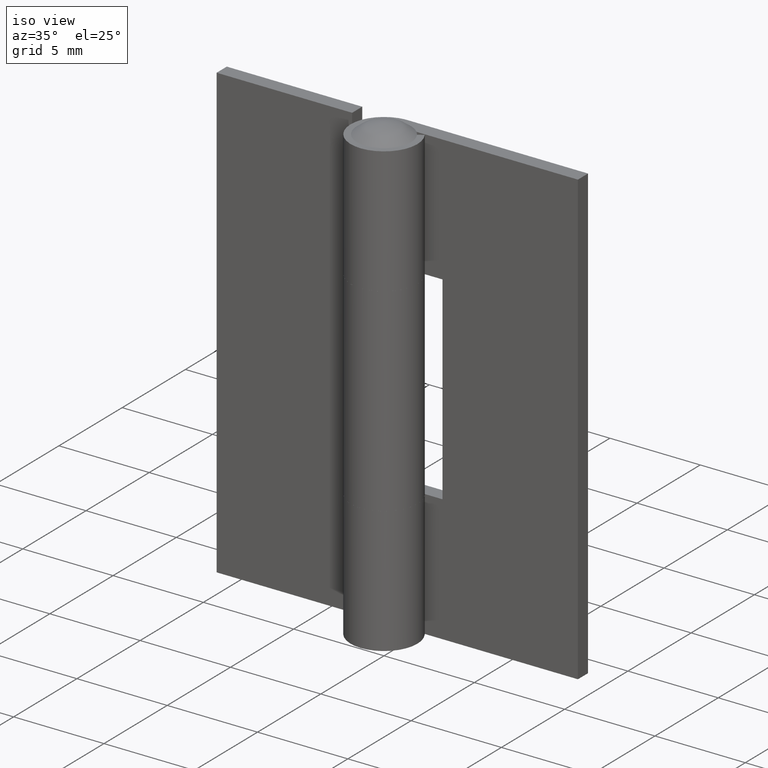
[diagram: clean part render]
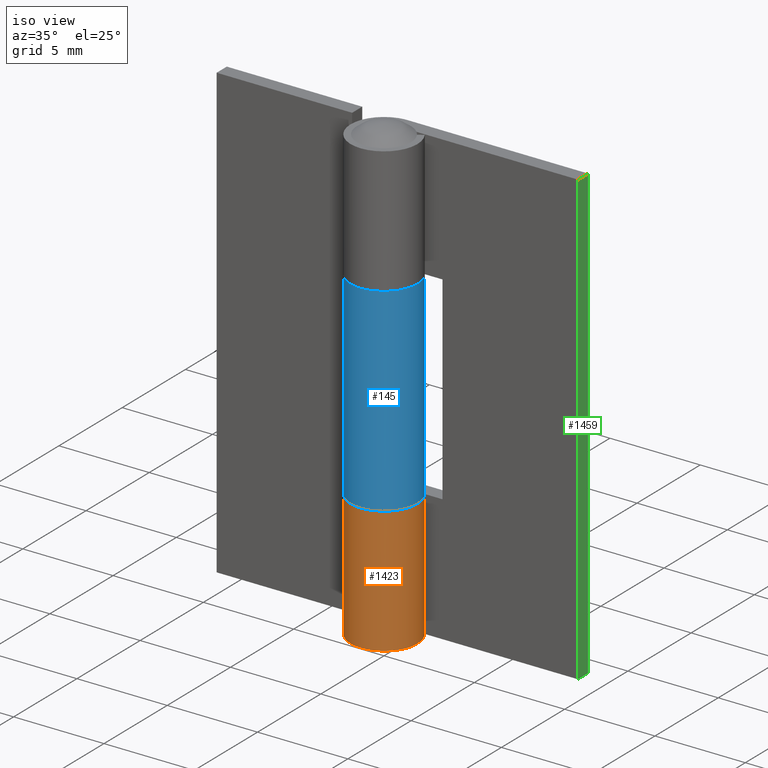
[diagram: same view with three faces highlighted in distinct colors, each labeled with its STEP entity id]
A machine part, iso view with three faces highlighted in distinct colors.
Their STEP definitions:

[orange] entity #1423 — the highlighted face is a freeform B-spline surface patch.
#958=CARTESIAN_POINT('',(0.0,1.850000000000000,7.000000000000110));
#959=VERTEX_POINT('',#958);
#965=CARTESIAN_POINT('',(1.556437599134330,1.000000999999980,7.000000000000120));
#966=VERTEX_POINT('',#965);
#967=CARTESIAN_POINT('',(0.0,1.850000000000000,7.000000000000110));
#968=CARTESIAN_POINT('',(-0.127268408848582,1.850019647286654,7.000000000000132));
#969=CARTESIAN_POINT('',(-0.349982262850688,1.826922222838104,7.000000000000108));
#970=CARTESIAN_POINT('',(-0.686990299737018,1.728643160177314,7.000000000000128));
#971=CARTESIAN_POINT('',(-0.984441462476270,1.579663123610138,7.000000000000105));
#972=CARTESIAN_POINT('',(-1.232614709757564,1.388895804804235,7.000000000000175));
#973=CARTESIAN_POINT('',(-1.462454877827154,1.149947962182073,7.000000000000062));
#974=CARTESIAN_POINT('',(-1.657183413183615,0.856154086143930,7.000000000000131));
#975=CARTESIAN_POINT('',(-1.784511345406885,0.521288922532856,7.000000000000119));
#976=CARTESIAN_POINT('',(-1.848175367005760,0.195809847718068,7.000000000000167));
#977=CARTESIAN_POINT('',(-1.857344973425890,-0.130160534143147,7.000000000000004));
#978=CARTESIAN_POINT('',(-1.799596075178139,-0.470588706500222,7.000000000000307));
#979=CARTESIAN_POINT('',(-1.686178182907616,-0.782657249568118,6.999999999999855));
#980=CARTESIAN_POINT('',(-1.515128374480828,-1.082219649309122,7.000000000000356));
#981=CARTESIAN_POINT('',(-1.267555111867376,-1.367420031875147,6.999999999999767));
#982=CARTESIAN_POINT('',(-0.990132875751529,-1.573591170846910,7.000000000000688));
#983=CARTESIAN_POINT('',(-0.700059779731627,-1.720531518453179,6.999999999999867));
#984=CARTESIAN_POINT('',(-0.432620813027356,-1.807415463789146,7.000000000000225));
#985=CARTESIAN_POINT('',(-0.154997901250533,-1.849081285794230,7.000000000000104));
#986=CARTESIAN_POINT('',(0.131883755673086,-1.853357429693368,7.000000000000117));
#987=CARTESIAN_POINT('',(0.397614709101427,-1.814522250267602,7.000000000000136));
#988=CARTESIAN_POINT('',(0.689909312206600,-1.724142383445965,7.000000000000065));
#989=CARTESIAN_POINT('',(0.920154328078304,-1.613056816283573,7.000000000000307));
#990=CARTESIAN_POINT('',(1.162276961298242,-1.447711483704098,7.000000000000044));
#991=CARTESIAN_POINT('',(1.364453192527809,-1.261769308445522,7.000000000000155));
#992=CARTESIAN_POINT('',(1.556707649877574,-1.015097005058090,7.000000000000108));
#993=CARTESIAN_POINT('',(1.727303556263660,-0.700650326120648,7.000000000000138));
#994=CARTESIAN_POINT('',(1.833821620476215,-0.337618058770215,7.000000000000083));
#995=CARTESIAN_POINT('',(1.858805785737472,0.025822444694856,7.000000000000168));
#996=CARTESIAN_POINT('',(1.825804441169200,0.349663247525962,7.000000000000104));
#997=CARTESIAN_POINT('',(1.734862934942954,0.675950258588345,6.999999999999750));
#998=CARTESIAN_POINT('',(1.625248268977287,0.892936776775437,7.000000000000932));
#999=CARTESIAN_POINT('',(1.556437599134330,1.000000999999980,7.000000000000120));
#1000=B_SPLINE_CURVE_WITH_KNOTS('',3,(#967,#968,#969,#970,#971,#972,#973,#974,#975,#976,#977,#978,#979,#980,#981,#982,#983,#984,#985,#986,#987,#988,#989,#990,#991,#992,#993,#994,#995,#996,#997,#998,#999),.UNSPECIFIED.,.F.,.U.,(4,1,1,1,1,1,1,1,1,1,1,1,1,1,1,1,1,1,1,1,1,1,1,1,1,1,1,1,1,1,4),(0.000000114575426,0.381802993802720,0.668168825409154,1.049988793245555,1.374536294766958,1.603628911715331,2.042714905346599,2.424537322749890,2.672690548535703,3.035419288678390,3.398152539963334,3.703605572299271,4.028151496728881,4.429055075905426,4.829968298970424,5.059033198297724,5.402679579567867,5.669944953283073,5.899037543651374,6.261766290576734,6.471763234315688,6.815397381076055,7.025406832492978,7.349924435297402,7.636285266158033,7.960839371755872,8.419017634739870,8.762654555039168,9.049020190715091,9.392653742420817,9.774461188009791),.UNSPECIFIED.);
#1001=EDGE_CURVE('',#959,#966,#1000,.T.);
#1176=CARTESIAN_POINT('',(1.556437599134330,1.000000999999980,0.0));
#1177=VERTEX_POINT('',#1176);
#1183=CARTESIAN_POINT('',(0.0,1.850000000000000,0.0));
#1184=VERTEX_POINT('',#1183);
#1185=CARTESIAN_POINT('',(1.556437599134330,1.000000999999980,0.0));
#1186=CARTESIAN_POINT('',(1.614919466232052,0.908995198988930,0.0));
#1187=CARTESIAN_POINT('',(1.709911712965063,0.727992889996504,0.0));
#1188=CARTESIAN_POINT('',(1.797788191864511,0.461261278961984,0.0));
#1189=CARTESIAN_POINT('',(1.847721578901901,0.185204178445372,0.0));
#1190=CARTESIAN_POINT('',(1.857879992178077,-0.159615410815052,0.0));
#1191=CARTESIAN_POINT('',(1.788540836779485,-0.525256484304277,0.0));
#1192=CARTESIAN_POINT('',(1.629784431127474,-0.901834313529941,0.0));
#1193=CARTESIAN_POINT('',(1.398175395356866,-1.240318237398118,0.0));
#1194=CARTESIAN_POINT('',(1.095049372931370,-1.507758290445123,0.0));
#1195=CARTESIAN_POINT('',(0.750949698833143,-1.703202570827433,0.0));
#1196=CARTESIAN_POINT('',(0.447557048390358,-1.805668789285905,0.0));
#1197=CARTESIAN_POINT('',(0.081512142601785,-1.859153323581745,0.0));
#1198=CARTESIAN_POINT('',(-0.270657373229639,-1.844843462542183,0.0));
#1199=CARTESIAN_POINT('',(-0.635484237623524,-1.748792448661818,0.0));
#1200=CARTESIAN_POINT('',(-0.975988352897429,-1.587217599968951,0.0));
#1201=CARTESIAN_POINT('',(-1.272005667258736,-1.362442159112480,0.0));
#1202=CARTESIAN_POINT('',(-1.492714431956814,-1.105484600241428,0.0));
#1203=CARTESIAN_POINT('',(-1.643893018464556,-0.861633349860477,0.0));
#1204=CARTESIAN_POINT('',(-1.767626619310086,-0.581357535892943,0.0));
#1205=CARTESIAN_POINT('',(-1.837639626117233,-0.282198120249321,0.0));
#1206=CARTESIAN_POINT('',(-1.857783115005402,0.055124784937026,0.0));
#1207=CARTESIAN_POINT('',(-1.827481382839163,0.341403134699213,0.0));
#1208=CARTESIAN_POINT('',(-1.744120924162519,0.635973956606939,0.0));
#1209=CARTESIAN_POINT('',(-1.619161948804697,0.915697524674720,0.0));
#1210=CARTESIAN_POINT('',(-1.445566345521452,1.169000721382992,0.0));
#1211=CARTESIAN_POINT('',(-1.209996777650326,1.411434996884379,0.0));
#1212=CARTESIAN_POINT('',(-0.930751190918129,1.614825688068647,0.0));
#1213=CARTESIAN_POINT('',(-0.515394801940501,1.799297457748852,0.0));
#1214=CARTESIAN_POINT('',(-0.190918806826347,1.850098657169000,0.0));
#1215=CARTESIAN_POINT('',(0.0,1.850000000000000,0.0));
#1216=B_SPLINE_CURVE_WITH_KNOTS('',3,(#1185,#1186,#1187,#1188,#1189,#1190,#1191,#1192,#1193,#1194,#1195,#1196,#1197,#1198,#1199,#1200,#1201,#1202,#1203,#1204,#1205,#1206,#1207,#1208,#1209,#1210,#1211,#1212,#1213,#1214,#1215),.UNSPECIFIED.,.F.,.U.,(4,1,1,1,1,1,1,1,1,1,1,1,1,1,1,1,1,1,1,1,1,1,1,1,1,1,1,1,4),(0.000000114528136,0.324529598206205,0.610895642268463,0.839988644991774,1.164535107637649,1.641806637505939,1.947265952378444,2.386352854833610,2.863600829372197,3.149965491480494,3.569969266373968,3.818151860456730,4.257241750845778,4.619964549261098,4.944493938499309,5.383581192645487,5.727218060915442,5.956310669443045,6.242674464045303,6.643580717549677,6.872671453449273,7.254488313540656,7.502648336934986,7.789020645619994,8.170833199597809,8.419017634733311,8.800833840093958,9.201739424129574,9.774461188009880),.UNSPECIFIED.);
#1217=EDGE_CURVE('',#1177,#1184,#1216,.T.);
#1382=CARTESIAN_POINT('',(1.556437599134330,1.000000999999980,7.000000000000120));
#1383=CARTESIAN_POINT('',(1.556437599134330,1.000000999999980,0.0));
#1384=QUASI_UNIFORM_CURVE('',1,(#1382,#1383),.UNSPECIFIED.,.F.,.U.);
#1385=EDGE_CURVE('',#966,#1177,#1384,.T.);
#1391=CARTESIAN_POINT('',(0.016144090671990,1.849929557668716,7.175000000000124));
#1392=CARTESIAN_POINT('',(0.016144090671990,1.849929557668716,-0.179375000000003));
#1393=CARTESIAN_POINT('',(-2.268328659883252,1.869865849334401,7.175000000000124));
#1394=CARTESIAN_POINT('',(-2.268328659883252,1.869865849334401,-0.179375000000003));
#1395=CARTESIAN_POINT('',(-1.812860703548534,-0.368830678671816,7.175000000000124));
#1396=CARTESIAN_POINT('',(-1.812860703548534,-0.368830678671816,-0.179375000000003));
#1397=CARTESIAN_POINT('',(-1.357392747213816,-2.607527206678032,7.175000000000124));
#1398=CARTESIAN_POINT('',(-1.357392747213816,-2.607527206678032,-0.179375000000003));
#1399=CARTESIAN_POINT('',(0.737685777511706,-1.696561137612479,7.175000000000124));
#1400=CARTESIAN_POINT('',(0.737685777511706,-1.696561137612479,-0.179375000000003));
#1401=CARTESIAN_POINT('',(2.832764302237227,-0.785595068546925,7.175000000000124));
#1402=CARTESIAN_POINT('',(2.832764302237227,-0.785595068546925,-0.179375000000003));
#1403=CARTESIAN_POINT('',(1.506113708959191,1.074300468065238,7.175000000000124));
#1404=CARTESIAN_POINT('',(1.506113708959191,1.074300468065238,-0.179375000000003));
#1412=(BOUNDED_SURFACE()B_SPLINE_SURFACE(1,2,((#1391,#1393,#1395,#1397,#1399,#1401,#1403),(#1392,#1394,#1396,#1398,#1400,#1402,#1404)),.UNSPECIFIED.,.F.,.F.,.U.)B_SPLINE_SURFACE_WITH_KNOTS((2,2),(3,2,2,3),(0.0,7.354375000000127),(0.0,3.529618941966384,7.059237883932768,10.588856825899150),.UNSPECIFIED.)GEOMETRIC_REPRESENTATION_ITEM()RATIONAL_B_SPLINE_SURFACE(((1.0,0.629320391049838,1.0,0.629320391049838,1.0,0.629320391049838,1.0),(1.0,0.629320391049838,1.0,0.629320391049838,1.0,0.629320391049838,1.0)))REPRESENTATION_ITEM('')SURFACE());
#1413=ORIENTED_EDGE('',*,*,#1001,.F.);
#1414=CARTESIAN_POINT('',(0.0,1.850000000000000,7.000000000000110));
#1415=CARTESIAN_POINT('',(0.0,1.850000000000000,0.0));
#1416=QUASI_UNIFORM_CURVE('',1,(#1414,#1415),.UNSPECIFIED.,.F.,.U.);
#1417=EDGE_CURVE('',#959,#1184,#1416,.T.);
#1418=ORIENTED_EDGE('',*,*,#1417,.T.);
#1419=ORIENTED_EDGE('',*,*,#1217,.F.);
#1420=ORIENTED_EDGE('',*,*,#1385,.F.);
#1421=EDGE_LOOP('',(#1413,#1418,#1419,#1420));
#1422=FACE_OUTER_BOUND('',#1421,.T.);
#1423=ADVANCED_FACE('',(#1422),#1412,.T.);

[blue] entity #145 — the highlighted face is a freeform B-spline surface patch.
#19=CARTESIAN_POINT('',(-1.556437599134330,1.000000999999980,6.999999999999901));
#20=VERTEX_POINT('',#19);
#26=CARTESIAN_POINT('',(-1.556437599134330,1.000000999999980,18.0));
#27=VERTEX_POINT('',#26);
#28=CARTESIAN_POINT('',(-1.556437599134330,1.000000999999980,18.0));
#29=CARTESIAN_POINT('',(-1.556437599134330,1.000000999999980,6.999999999999901));
#30=QUASI_UNIFORM_CURVE('',1,(#28,#29),.UNSPECIFIED.,.F.,.U.);
#31=EDGE_CURVE('',#27,#20,#30,.T.);
#41=CARTESIAN_POINT('',(-1.524633448950729,1.047851538310940,18.275000000000009));
#42=CARTESIAN_POINT('',(-1.524633448950729,1.047851538310940,6.718124999999867));
#43=CARTESIAN_POINT('',(-2.841963376294857,-0.868875399715183,18.275000000000006));
#44=CARTESIAN_POINT('',(-2.841963376294857,-0.868875399715183,6.718124999999867));
#45=CARTESIAN_POINT('',(-0.678027269439949,-1.721272500766745,18.275000000000009));
#46=CARTESIAN_POINT('',(-0.678027269439949,-1.721272500766745,6.718124999999867));
#47=CARTESIAN_POINT('',(1.485908837414959,-2.573669601818308,18.275000000000006));
#48=CARTESIAN_POINT('',(1.485908837414959,-2.573669601818308,6.718124999999867));
#49=CARTESIAN_POINT('',(1.829679347219546,-0.273447410589778,18.275000000000009));
#50=CARTESIAN_POINT('',(1.829679347219546,-0.273447410589778,6.718124999999867));
#51=CARTESIAN_POINT('',(2.173449857024133,2.026774780638751,18.275000000000006));
#52=CARTESIAN_POINT('',(2.173449857024133,2.026774780638751,6.718124999999867));
#53=CARTESIAN_POINT('',(-0.145149327096515,1.844297067406286,18.275000000000009));
#54=CARTESIAN_POINT('',(-0.145149327096515,1.844297067406286,6.718124999999867));
#62=(BOUNDED_SURFACE()B_SPLINE_SURFACE(1,2,((#41,#43,#45,#47,#49,#51,#53),(#42,#44,#46,#48,#50,#52,#54)),.UNSPECIFIED.,.F.,.F.,.U.)B_SPLINE_SURFACE_WITH_KNOTS((2,2),(3,2,2,3),(0.0,11.556875000000140),(0.0,3.569336282050022,7.138672564100044,10.708008846150070),.UNSPECIFIED.)GEOMETRIC_REPRESENTATION_ITEM()RATIONAL_B_SPLINE_SURFACE(((1.0,0.622514636637620,1.0,0.622514636637620,1.0,0.622514636637620,1.0),(1.0,0.622514636637620,1.0,0.622514636637620,1.0,0.622514636637620,1.0)))REPRESENTATION_ITEM('')SURFACE());
#63=ORIENTED_EDGE('',*,*,#31,.T.);
#64=CARTESIAN_POINT('',(0.0,1.850000000000000,6.999999999999870));
#65=VERTEX_POINT('',#64);
#66=CARTESIAN_POINT('',(-1.556437599134330,1.000000999999980,6.999999999999901));
#67=CARTESIAN_POINT('',(-1.625249621266764,0.892938819522273,6.999999999999907));
#68=CARTESIAN_POINT('',(-1.720427784096017,0.704497551381904,6.999999999999902));
#69=CARTESIAN_POINT('',(-1.823315813571181,0.369137821200682,6.999999999999879));
#70=CARTESIAN_POINT('',(-1.859965469401212,0.057458741891836,6.999999999999926));
#71=CARTESIAN_POINT('',(-1.838906415415909,-0.248071803903765,6.999999999999882));
#72=CARTESIAN_POINT('',(-1.782393560656440,-0.522857972547343,6.999999999999916));
#73=CARTESIAN_POINT('',(-1.670538900761240,-0.822199771180642,6.999999999999896));
#74=CARTESIAN_POINT('',(-1.495594461355779,-1.105147144914423,6.999999999999909));
#75=CARTESIAN_POINT('',(-1.278806837757283,-1.347794257458789,6.999999999999905));
#76=CARTESIAN_POINT('',(-1.020885779830299,-1.557117968521313,6.999999999999854));
#77=CARTESIAN_POINT('',(-0.698210171532642,-1.727425581262935,7.000000000000023));
#78=CARTESIAN_POINT('',(-0.317118681986618,-1.836704255330186,6.999999999999633));
#79=CARTESIAN_POINT('',(0.059895106899232,-1.862269544635880,6.999999999999971));
#80=CARTESIAN_POINT('',(0.389037534621591,-1.816300870426969,6.999999999999958));
#81=CARTESIAN_POINT('',(0.675880827331305,-1.729613698091419,6.999999999999879));
#82=CARTESIAN_POINT('',(0.975991636592989,-1.587222381581358,6.999999999999520));
#83=CARTESIAN_POINT('',(1.261791120499078,-1.370187179951568,7.000000000000015));
#84=CARTESIAN_POINT('',(1.527076077268043,-1.067763204584972,6.999999999999858));
#85=CARTESIAN_POINT('',(1.700393509045129,-0.760612124219870,6.999999999999915));
#86=CARTESIAN_POINT('',(1.816132310634046,-0.402251435543915,6.999999999999901));
#87=CARTESIAN_POINT('',(1.865805633790853,-0.028075212279116,6.999999999999903));
#88=CARTESIAN_POINT('',(1.828636098734357,0.361310578408463,6.999999999999899));
#89=CARTESIAN_POINT('',(1.712894840971638,0.726706146368821,6.999999999999902));
#90=CARTESIAN_POINT('',(1.531545281628258,1.064789443188499,6.999999999999898));
#91=CARTESIAN_POINT('',(1.262702295807013,1.374875457886996,6.999999999999914));
#92=CARTESIAN_POINT('',(0.971844530007370,1.584384227197044,6.999999999999892));
#93=CARTESIAN_POINT('',(0.703299807899388,1.717151201110898,6.999999999999790));
#94=CARTESIAN_POINT('',(0.400886192443950,1.819087246176188,7.000000000000558));
#95=CARTESIAN_POINT('',(0.152728147228849,1.850039280936157,6.999999999998347));
#96=CARTESIAN_POINT('',(0.0,1.850000000000000,6.999999999999870));
#97=B_SPLINE_CURVE_WITH_KNOTS('',3,(#66,#67,#68,#69,#70,#71,#72,#73,#74,#75,#76,#77,#78,#79,#80,#81,#82,#83,#84,#85,#86,#87,#88,#89,#90,#91,#92,#93,#94,#95,#96),.UNSPECIFIED.,.F.,.U.,(4,1,1,1,1,1,1,1,1,1,1,1,1,1,1,1,1,1,1,1,1,1,1,1,1,1,1,1,4),(0.000000114528136,0.381802993757237,0.629994440625348,1.049988793203204,1.317263186870806,1.546355775565177,1.889993571195218,2.271813463196567,2.539054532305951,2.863600829372197,3.264511995013879,3.627241730761830,4.047244247449267,4.390882049550984,4.619964549261098,4.944493938499309,5.383581192645487,5.689041087791479,6.147220301458285,6.433585749664085,6.815397381061476,7.273583020991991,7.598115487292008,7.960839371747021,8.419017634733311,8.819927718721999,9.029923535196717,9.316286591924547,9.774461188009880),.UNSPECIFIED.);
#98=EDGE_CURVE('',#20,#65,#97,.T.);
#99=ORIENTED_EDGE('',*,*,#98,.T.);
#100=CARTESIAN_POINT('',(0.0,1.850000000000000,18.0));
#101=VERTEX_POINT('',#100);
#102=CARTESIAN_POINT('',(0.0,1.850000000000000,18.0));
#103=CARTESIAN_POINT('',(0.0,1.850000000000000,6.999999999999870));
#104=QUASI_UNIFORM_CURVE('',1,(#102,#103),.UNSPECIFIED.,.F.,.U.);
#105=EDGE_CURVE('',#101,#65,#104,.T.);
#106=ORIENTED_EDGE('',*,*,#105,.F.);
#107=CARTESIAN_POINT('',(0.0,1.850000000000000,18.0));
#108=CARTESIAN_POINT('',(0.171822881313075,1.850066998531620,18.000000000000011));
#109=CARTESIAN_POINT('',(0.496328081647204,1.804454856719441,18.000000000000011));
#110=CARTESIAN_POINT('',(0.897540873202493,1.633677985283619,17.999999999999929));
#111=CARTESIAN_POINT('',(1.189919244156128,1.427539774698216,18.000000000000071));
#112=CARTESIAN_POINT('',(1.389742870304210,1.230209294931577,17.999999999999972));
#113=CARTESIAN_POINT('',(1.556182654973875,1.012352020422458,17.999999999999879));
#114=CARTESIAN_POINT('',(1.686613949393402,0.778023870778509,18.000000000000071));
#115=CARTESIAN_POINT('',(1.785898884532325,0.508635013230260,17.999999999999861));
#116=CARTESIAN_POINT('',(1.849115108800375,0.202342533289641,18.000000000000480));
#117=CARTESIAN_POINT('',(1.857636318655600,-0.168612993336110,17.999999999999591));
#118=CARTESIAN_POINT('',(1.781636763524981,-0.545542312558130,17.999999999999510));
#119=CARTESIAN_POINT('',(1.653131780662782,-0.844924857202881,18.000000000000430));
#120=CARTESIAN_POINT('',(1.506587776647208,-1.084043786026686,17.999999999999861));
#121=CARTESIAN_POINT('',(1.307655256732836,-1.325540145915734,17.999999999999829));
#122=CARTESIAN_POINT('',(1.005269423495470,-1.572913473198783,18.000000000000568));
#123=CARTESIAN_POINT('',(0.653847597020493,-1.744130415137686,17.999999999999890));
#124=CARTESIAN_POINT('',(0.301397437764580,-1.834936737786950,18.000000000000121));
#125=CARTESIAN_POINT('',(-0.017218271508689,-1.859448950171878,17.999999999999911));
#126=CARTESIAN_POINT('',(-0.303159506431500,-1.831134924146536,18.000000000000099));
#127=CARTESIAN_POINT('',(-0.563318327670065,-1.768030416795119,17.999999999999758));
#128=CARTESIAN_POINT('',(-0.789258801494659,-1.679844437711423,18.000000000000629));
#129=CARTESIAN_POINT('',(-1.022779839807276,-1.548780179925015,17.999999999999002));
#130=CARTESIAN_POINT('',(-1.251305105609413,-1.374802204009115,18.000000000000391));
#131=CARTESIAN_POINT('',(-1.451644649326942,-1.159651997659970,17.999999999999780));
#132=CARTESIAN_POINT('',(-1.611278318876315,-0.921143483415194,18.000000000000131));
#133=CARTESIAN_POINT('',(-1.727966150846765,-0.679911857285023,17.999999999999918));
#134=CARTESIAN_POINT('',(-1.820674645152707,-0.381211793802990,18.000000000000099));
#135=CARTESIAN_POINT('',(-1.856760558007631,-0.082705409291496,17.999999999999869));
#136=CARTESIAN_POINT('',(-1.843042315549776,0.223029354965575,18.000000000000160));
#137=CARTESIAN_POINT('',(-1.774588419531345,0.580496933035846,17.999999999999350));
#138=CARTESIAN_POINT('',(-1.656275985827324,0.844784948310466,18.000000000001300));
#139=CARTESIAN_POINT('',(-1.556437599134330,1.000000999999980,18.0));
#140=B_SPLINE_CURVE_WITH_KNOTS('',3,(#107,#108,#109,#110,#111,#112,#113,#114,#115,#116,#117,#118,#119,#120,#121,#122,#123,#124,#125,#126,#127,#128,#129,#130,#131,#132,#133,#134,#135,#136,#137,#138,#139),.UNSPECIFIED.,.F.,.U.,(4,1,1,1,1,1,1,1,1,1,1,1,1,1,1,1,1,1,1,1,1,1,1,1,1,1,1,1,1,1,4),(0.000000114575425,0.515448821948358,0.973626922594145,1.298171546486179,1.584533950588304,1.813623613769048,2.119078919430711,2.386352854869600,2.672690548535702,3.054516166350136,3.493604630736069,3.818151860485831,4.028151496728880,4.333609373736405,4.753600773015941,5.192670127473638,5.498126124954092,5.841764379958584,6.147220301476123,6.357218701524893,6.643580717565094,6.872671453463576,7.159043761776811,7.502648336946157,7.750830729664294,8.018111380907007,8.304473397347156,8.686289602671170,8.915378373050137,9.220838598730094,9.774461188009791),.UNSPECIFIED.);
#141=EDGE_CURVE('',#101,#27,#140,.T.);
#142=ORIENTED_EDGE('',*,*,#141,.T.);
#143=EDGE_LOOP('',(#63,#99,#106,#142));
#144=FACE_OUTER_BOUND('',#143,.T.);
#145=ADVANCED_FACE('',(#144),#62,.T.);

[green] entity #1459 — the highlighted face is a freeform B-spline surface patch.
#1219=CARTESIAN_POINT('',(10.0,1.850000000000000,0.0));
#1220=VERTEX_POINT('',#1219);
#1226=CARTESIAN_POINT('',(10.0,1.050000999999980,0.0));
#1227=VERTEX_POINT('',#1226);
#1228=CARTESIAN_POINT('',(10.0,1.050000999999980,0.0));
#1229=CARTESIAN_POINT('',(10.0,1.850000000000000,0.0));
#1230=QUASI_UNIFORM_CURVE('',1,(#1228,#1229),.UNSPECIFIED.,.F.,.U.);
#1231=EDGE_CURVE('',#1227,#1220,#1230,.T.);
#1347=CARTESIAN_POINT('',(10.0,1.050000999999980,25.0));
#1348=VERTEX_POINT('',#1347);
#1354=CARTESIAN_POINT('',(10.0,1.850000000000000,25.0));
#1355=VERTEX_POINT('',#1354);
#1356=CARTESIAN_POINT('',(10.0,1.050000999999980,25.0));
#1357=CARTESIAN_POINT('',(10.0,1.850000000000000,25.0));
#1358=QUASI_UNIFORM_CURVE('',1,(#1356,#1357),.UNSPECIFIED.,.F.,.U.);
#1359=EDGE_CURVE('',#1348,#1355,#1358,.T.);
#1433=CARTESIAN_POINT('',(10.0,1.850000000000000,25.0));
#1434=CARTESIAN_POINT('',(10.0,1.850000000000000,0.0));
#1435=QUASI_UNIFORM_CURVE('',1,(#1433,#1434),.UNSPECIFIED.,.F.,.U.);
#1436=EDGE_CURVE('',#1355,#1220,#1435,.T.);
#1444=CARTESIAN_POINT('',(10.0,1.010041051500533,-1.248749951545149));
#1445=CARTESIAN_POINT('',(10.0,1.010041051500533,26.248750622097401));
#1446=CARTESIAN_POINT('',(10.0,1.889959969957093,-1.248749951545149));
#1447=CARTESIAN_POINT('',(10.0,1.889959969957093,26.248750622097401));
#1448=B_SPLINE_SURFACE_WITH_KNOTS('',1,1,((#1444,#1446),(#1445,#1447)),.UNSPECIFIED.,.F.,.F.,.U.,(2,2),(2,2),(0.0,27.497500573642551),(0.041708334948495,0.958291687403247),.UNSPECIFIED.);
#1449=ORIENTED_EDGE('',*,*,#1231,.T.);
#1450=ORIENTED_EDGE('',*,*,#1436,.F.);
#1451=ORIENTED_EDGE('',*,*,#1359,.F.);
#1452=CARTESIAN_POINT('',(10.0,1.050000999999980,25.0));
#1453=CARTESIAN_POINT('',(10.0,1.050000999999980,0.0));
#1454=QUASI_UNIFORM_CURVE('',1,(#1452,#1453),.UNSPECIFIED.,.F.,.U.);
#1455=EDGE_CURVE('',#1348,#1227,#1454,.T.);
#1456=ORIENTED_EDGE('',*,*,#1455,.T.);
#1457=EDGE_LOOP('',(#1449,#1450,#1451,#1456));
#1458=FACE_OUTER_BOUND('',#1457,.T.);
#1459=ADVANCED_FACE('',(#1458),#1448,.F.);